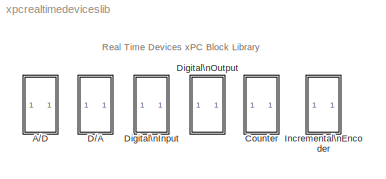
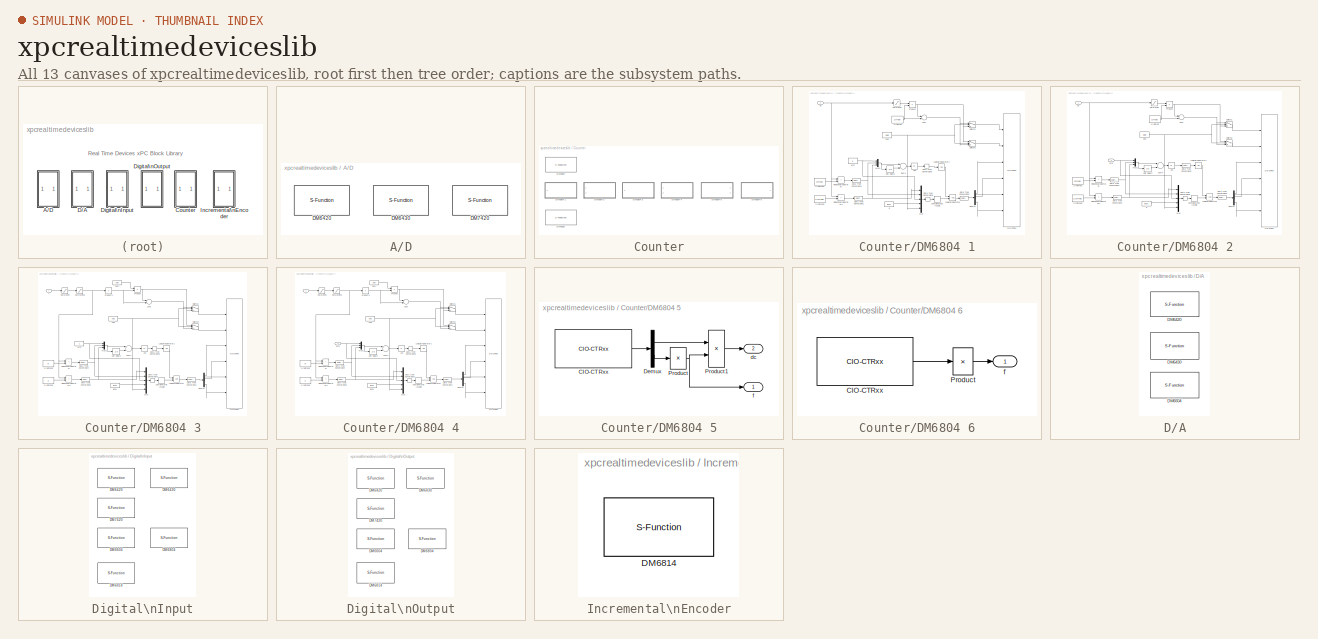
[diagram: thumbnail index - all 13 canvases of the model, root first then tree order]
MODEL xpcrealtimedeviceslib
KIND library
BLOCK [SubSystem] A//D
  EnableExecutionContextPropagation = on
  MinAlgLoopOccurrences = off
  Ports = []
  TreatAsAtomicUnit = off
BLOCK [S-Function] A//D/DM6420 
  FunctionName = adrtddm64x0
  InitFcn = madrtddm64x0(1);
  MaskCallbackString = |||||
  MaskDescription = DM6420\nReal Time Devices\nAnalog Input
  MaskDisplay = text(0.05,0.75,'DM6420','horizontalAlignment','left');text(0.05,0.50,'RTD','horizontalAlignment','left');text(0.05,0.25,'AnalogIn','horizontalAlignment','left');port_label('output',1,'1 (SE)');
  MaskEnableString = on,on,on,on,on,on
  MaskHelp = helpview(fullfile(docroot, 'mapfiles', 'xpc.map'), 'RealTimeDevices_DM6420_AD')
  MaskIconFrame = on
  MaskIconOpaque = on
  MaskIconRotate = none
  MaskIconUnits = normalized
  MaskInitialization = boardType=1;\nbaseAddr=hex2dec(baseAddr(3:end));\nchannel=0;coupling=0;range=1;gain=0;\n[channel,coupling,range,gain,maskdisplay,maskdescription]=madrtddm64x0(2, boardType, channelin, couplingin, rangein, gainin);\nset_param(gcb,'MaskDisplay',maskdisplay);\nset_param(gcb,'MaskDescription',maskdescription);\n\n
  MaskPromptString = Channel vector:|Input coupling vector:|Range vector:|Gain vector:|Sample time:|Base address (i.e. 0xd000):
  MaskSelfModifiable = on
  MaskStyleString = edit,edit,edit,edit,edit,edit
  MaskTabNameString = ,,,,,
  MaskToolTipString = on,on,on,on,on,on
  MaskTunableValueString = on,on,on,on,on,on
  MaskType = adrtddm6420
  MaskValueString = [1]|[1]|[-10]|[1]|0.001|0x300
  MaskVarAliasString = ,,,,,
  MaskVariables = channelin=@1;couplingin=@2;rangein=@3;gainin=@4;ts=@5;baseAddr=&6;
  MaskVisibilityString = on,on,on,on,on,on
  Parameters = channel, coupling, range, gain, ts, baseAddr, boardType
  Ports = [0, 1]
BLOCK [S-Function] A//D/DM6430 
  FunctionName = adrtddm64x0
  InitFcn = madrtddm64x0(1);
  MaskCallbackString = ||||
  MaskDescription = DM6430\nReal Time Devices\nAnalog Input
  MaskDisplay = text(0.05,0.75,'DM6430','horizontalAlignment','left');text(0.05,0.50,'RTD','horizontalAlignment','left');text(0.05,0.25,'AnalogIn','horizontalAlignment','left');port_label('output',1,'1 (SE)');
  MaskEnableString = on,on,on,on,on
  MaskHelp = helpview(fullfile(docroot, 'mapfiles', 'xpc.map'), 'RealTimeDevices_DM6430_AD')
  MaskIconFrame = on
  MaskIconOpaque = on
  MaskIconRotate = none
  MaskIconUnits = normalized
  MaskInitialization = rangein=-10;\nboardType=2;\nbaseAddr=hex2dec(baseAddr(3:end));\nchannel=0;coupling=0;range=1;gain=0;\n[channel,coupling,range,gain,maskdisplay,maskdescription]=madrtddm64x0(2, boardType, channelin, couplingin, rangein, gainin);\nset_param(gcb,'MaskDisplay',maskdisplay);\nset_param(gcb,'MaskDescription',maskdescription);\n\n
  MaskPromptString = Channel vector:|Input coupling vector:|Gain vector:|Sample time:|Base address (i.e. 0xd000):
  MaskSelfModifiable = on
  MaskStyleString = edit,edit,edit,edit,edit
  MaskTabNameString = ,,,,
  MaskToolTipString = on,on,on,on,on
  MaskTunableValueString = on,on,on,on,on
  MaskType = adrtddm6430
  MaskValueString = [1]|[1]|[1]|0.001|0x300
  MaskVarAliasString = ,,,,
  MaskVariables = channelin=@1;couplingin=@2;gainin=@3;ts=@4;baseAddr=&5;
  MaskVisibilityString = on,on,on,on,on
  Parameters = channel, coupling, range, gain, ts, baseAddr, boardType
  Ports = [0, 1]
BLOCK [S-Function] A//D/DM7420 
  FunctionName = adrtddm7420
  InitFcn = madrtddm7420(1);
  MaskCallbackString = |||||
  MaskDescription = DM7420\nReal Time Devices\nAnalog Input
  MaskDisplay = text(0.05,0.75,'DM7420','horizontalAlignment','left');text(0.05,0.50,'RTD','horizontalAlignment','left');text(0.05,0.25,'AnalogIn','horizontalAlignment','left');port_label('output',1,'1 (RSE)');
  MaskEnableString = on,on,on,on,on,on
  MaskHelp = helpview(fullfile(docroot, 'mapfiles', 'xpc.map'), 'RealTimeDevices_DM7420_AD')
  MaskIconFrame = on
  MaskIconOpaque = on
  MaskIconRotate = none
  MaskIconUnits = normalized
  MaskInitialization = pciDev=1;\nchannel=0;coupling=0;range=1;gain=0;\n[channel,coupling,range,gain,maskdisplay,maskdescription]=madrtddm7420(2, channelin, couplingin, rangein, gainin);\nset_param(gcb,'MaskDisplay',maskdisplay);\nset_param(gcb,'MaskDescription',maskdescription);\n\n
  MaskPromptString = Channel vector:|Input coupling vector:|Range vector:|Gain vector:|Sample time:|PCI slot (-1: autosearch):
  MaskSelfModifiable = on
  MaskStyleString = edit,edit,edit,edit,edit,edit
  MaskTabNameString = ,,,,,
  MaskToolTipString = on,on,on,on,on,on
  MaskTunableValueString = on,on,on,on,on,on
  MaskType = adrtddm7420
  MaskValueString = [1]|[1]|[-10]|[1]|0.001|-1
  MaskVarAliasString = ,,,,,
  MaskVariables = channelin=@1;couplingin=@2;rangein=@3;gainin=@4;ts=@5;pciSlot=@6;
  MaskVisibilityString = on,on,on,on,on,on
  Parameters = channel, coupling, range, gain, ts, pciSlot, pciDev
  Ports = [0, 1]
BLOCK [SubSystem] Counter
  EnableExecutionContextPropagation = on
  MinAlgLoopOccurrences = off
  Ports = []
  TreatAsAtomicUnit = off
BLOCK [S-Function] Counter/DM6804 
  FunctionName = ctramd9513isa
  MaskCallbackString = ||||||
  MaskDescription = DM6804\nReal Time Devices\nAMD9513 Counter
  MaskDisplay = disp('AMD9513\\nCounter')
  MaskEnableString = on,on,on,on,on,on,on
  MaskHelp = helpview(fullfile(docroot, 'mapfiles', 'xpc.map'), 'RealTimeDevices_DM6804_Counter')
  MaskIconFrame = on
  MaskIconOpaque = on
  MaskIconRotate = none
  MaskIconUnits = autoscale
  MaskInitialization = baseAddress=hex2dec(baseAddress(3:end));\n[io,mm, cms, initir, ir, termir]=mamd9513parse(mastermode, countermode, init, commands, term);
  MaskPromptString = Master mode structure:|Counter mode structure:|Initialization command structure:|Runtime command structure:|Termination command structure:|Sample time:|9513 chip base address (i.e. 0xd000):
  MaskSelfModifiable = on
  MaskStyleString = edit,edit,edit,edit,edit,edit,edit
  MaskTabNameString = ,,,,,,
  MaskToolTipString = on,on,on,on,on,on,on
  MaskTunableValueString = on,on,on,on,on,on,on
  MaskType = rtddm6804
  MaskValueString = []|[]|[]|[]|[]|0.001|'0x300'
  MaskVarAliasString = ,,,,,,
  MaskVariables = mastermode=@1;countermode=@2;init=@3;commands=@4;term=@5;ts=@6;baseAddress=@7;
  MaskVisibilityString = on,on,on,on,on,on,on
  Parameters = io, mm, cms, initir, ir, termir, ts, baseAddress
  Ports = []
BLOCK [SubSystem] Counter/DM6804 1
  EnableExecutionContextPropagation = on
  MaskCallbackString = ||||||
  MaskDescription = DM6804\nReal Time Devices\nPWM
  MaskDisplay = text(0.95,0.75,'DM6804','horizontalAlignment','right');text(0.95,0.50,'RTD','horizontalAlignment','right');text(0.95,0.25,'PWM','horizontalAlignment','right');port_label('input',1,[num2str(counterin),' (dc)'] );
  MaskEnableString = on,on,on,on,on,on,on
  MaskHelp = helpview(fullfile(docroot, 'mapfiles', 'xpc.map'), 'RealTimeDevices_DM6804-1_Counter')
  MaskIconFrame = on
  MaskIconOpaque = on
  MaskIconRotate = none
  MaskIconUnits = normalized
  MaskInitialization = init_arm=0;\ninitduty=0.5;\ncounter=counterin;\nbaseAddress=['0x',dec2hex(hex2dec(baseAddress(3:end))+4)];\n[MasterMode, CounterMode, Init, Runtime, Term] =pwmarm_amd9513(counter, freq_base, freq, initduty, level, init_arm);\nlevel=level-1;\nseq=seq-1;
  MaskPromptString = Counter:|Frequency base:|Relative output frequency:|Level sequence of square wave:|Level when disarmed:|Sample time:|Base address (i.e. 0xd000):
  MaskSelfModifiable = on
  MaskStyleString = popup(1|2|3|4|5),popup(F1=5MHz|F2=500KHz|F3=50kHz|F4=5kHz|F5=500Hz),edit,popup(High - Low|Low- High),popup(Low|High),edit,edit
  MaskTabNameString = ,,,,,,
  MaskToolTipString = on,on,on,on,on,on,on
  MaskTunableValueString = on,on,on,on,on,on,on
  MaskType = PWM
  MaskValueString = 1|F1=5MHz|0.001|High - Low|High|0.001|0x300
  MaskVarAliasString = ,,,,,,
  MaskVariables = counterin=@1;freq_base=@2;freq=@3;seq=@4;level=@5;Ts=@6;baseAddress=&7;
  MaskVisibilityString = on,on,on,on,on,on,on
  MinAlgLoopOccurrences = off
  Ports = [1]
  TreatAsAtomicUnit = off
BLOCK [Constant] Counter/DM6804 1/1//relFreq
  Value = 1/freq
BLOCK [Constant] Counter/DM6804 1/1//relFreq1
  Value = 2*freq
BLOCK [Constant] Counter/DM6804 1/1//relFreq2
  Value = 1-2*freq
BLOCK [Abs] Counter/DM6804 1/Abs
BLOCK [Reference] Counter/DM6804 1/CIO-CTRxx   REF=xpcmeasurementcomputinglib/Counter/CIO-CTRxx 
  Ports = [6]
  SourceBlock = xpcmeasurementcomputinglib/Counter/CIO-CTRxx
  SourceType = cioctrxx
  baseAddress = baseAddress
  commands = Runtime
  countermode = CounterMode
  init = Init
  mastermode = MasterMode
  term = Term
  ts = Ts
BLOCK [CombinatorialLogic] Counter/DM6804 1/Combinatorial \nLogic
  TruthTable = [0,0,1,0;0,0,1,0;0,0,0,1;0,0,0,1;0,1,0,0;1,0,0,0;0,1,0,0;1,0,0,0;0,0,1,0;0,0,1,0;0,0,0,1;0,0,0,1;0,0,1,0;0,0,1,0;0,0,1,0;0,0,1,0;0,0,1,0;0,0,1,0;0,0,0,1;0,0,0,1;0,0,0,1;0,0,0,1;0,0,0,1;0,0,0,1;0,0,0,0;0,0,0,0;0,0,0,0;0,0,0,0;0,0,0,0;0,0,0,0;0,0,0,0;0,0,0,0]  <repeated x4 — deduplicated; at blocks: Combinatorial \nLogic>
BLOCK [DataTypeConversion] Counter/DM6804 1/Data Type Conversion1
  OutDataTypeMode = double
BLOCK [DataTypeConversion] Counter/DM6804 1/Data Type Conversion2
BLOCK [DataTypeConversion] Counter/DM6804 1/Data Type Conversion3
BLOCK [DataTypeConversion] Counter/DM6804 1/Data Type Conversion4
  OutDataTypeMode = double
BLOCK [DataTypeConversion] Counter/DM6804 1/Data Type Conversion5
BLOCK [Demux] Counter/DM6804 1/Demux
  Ports = [1, 4]
BLOCK [Logic] Counter/DM6804 1/Logical\nOperator
  Ports = [2, 1]
BLOCK [Logic] Counter/DM6804 1/Logical\nOperator1
  Inputs = 1
  Operator = OR
  Ports = [1, 1]
BLOCK [Mux] Counter/DM6804 1/Mux
  DisplayOption = bar
  Inputs = 5
  Ports = [5, 1]
BLOCK [Mux] Counter/DM6804 1/Mux1
  DisplayOption = bar
  Inputs = 3
  Ports = [3, 1]
BLOCK [Product] Counter/DM6804 1/Product
  Ports = [2, 1]
  RndMeth = Floor
BLOCK [RelationalOperator] Counter/DM6804 1/Relational\nOperator
  Operator = <
BLOCK [RelationalOperator] Counter/DM6804 1/Relational\nOperator1
  Operator = >
BLOCK [Saturate] Counter/DM6804 1/Saturation
  LowerLimit = 2*freq
  UpperLimit = 1-2*freq
  ZeroCross = off
BLOCK [Sum] Counter/DM6804 1/Sum
  Inputs = -+
  Ports = [2, 1]
BLOCK [Sum] Counter/DM6804 1/Sum4
  Inputs = +-
  Ports = [2, 1]
BLOCK [Switch] Counter/DM6804 1/Switch1
  SaturateOnIntegerOverflow = off
  Threshold = 0.5
BLOCK [Switch] Counter/DM6804 1/Switch2
  SaturateOnIntegerOverflow = off
  Threshold = 0.5
BLOCK [UnitDelay] Counter/DM6804 1/Unit Delay2
  SampleTime = Ts
  X0 = 2
BLOCK [Constant] Counter/DM6804 1/arm
BLOCK [Inport] Counter/DM6804 1/dc
  IconDisplay = Port number
  LatchInput = off
BLOCK [Constant] Counter/DM6804 1/g
  Value = level
BLOCK [Constant] Counter/DM6804 1/seq
  Value = seq
BLOCK [SubSystem] Counter/DM6804 2
  EnableExecutionContextPropagation = on
  MaskCallbackString = ||||||
  MaskDescription = DM6804\nReal Time Devices\nPWM & ARM
  MaskDisplay = text(0.95,0.75,'DM6804','horizontalAlignment','right');text(0.95,0.50,'RTD','horizontalAlignment','right');text(0.95,0.25,'PWM & ARM','horizontalAlignment','right');port_label('input',1,[num2str(counterin),' (dc)'] );port_label('input',2,[num2str(counterin),' (arm)'] );
  MaskEnableString = on,on,on,on,on,on,on
  MaskHelp = helpview(fullfile(docroot, 'mapfiles', 'xpc.map'), 'RealTimeDevices_DM6804-2_Counter')
  MaskIconFrame = on
  MaskIconOpaque = on
  MaskIconRotate = none
  MaskIconUnits = normalized
  MaskInitialization = init_arm=0;\ninitduty=0.5;\ncounter=counterin;\nbaseAddress=['0x',dec2hex(hex2dec(baseAddress(3:end))+4)];\n[MasterMode, CounterMode, Init, Runtime, Term] =pwmarm_amd9513(counter, freq_base, freq, initduty, level, init_arm);\nlevel=level-1;\nseq=seq-1;
  MaskPromptString = Counter:|Frequency base:|Relative output frequency:|Level sequence of square wave:|Level when disarmed:|Sample time:|Base address (i.e. 0xd000):
  MaskSelfModifiable = on
  MaskStyleString = popup(1|2|3|4|5),popup(F1=5MHz|F2=500KHz|F3=50kHz|F4=5kHz|F5=500Hz),edit,popup(High - Low|Low- High),popup(Low|High),edit,edit
  MaskTabNameString = ,,,,,,
  MaskToolTipString = on,on,on,on,on,on,on
  MaskTunableValueString = on,on,on,on,on,on,on
  MaskType = PWM
  MaskValueString = 1|F1=5MHz|0.001|High - Low|High|0.001|0x300
  MaskVarAliasString = ,,,,,,
  MaskVariables = counterin=@1;freq_base=@2;freq=@3;seq=@4;level=@5;Ts=@6;baseAddress=&7;
  MaskVisibilityString = on,on,on,on,on,on,on
  MinAlgLoopOccurrences = off
  Ports = [2]
  TreatAsAtomicUnit = off
BLOCK [Constant] Counter/DM6804 2/1//relFreq
  Value = 1/freq
BLOCK [Constant] Counter/DM6804 2/1//relFreq1
  Value = 2*freq
BLOCK [Constant] Counter/DM6804 2/1//relFreq2
  Value = 1-2*freq
BLOCK [Abs] Counter/DM6804 2/Abs
BLOCK [Reference] Counter/DM6804 2/CIO-CTRxx   REF=xpcmeasurementcomputinglib/Counter/CIO-CTRxx 
  Ports = [6]
  SourceBlock = xpcmeasurementcomputinglib/Counter/CIO-CTRxx
  SourceType = cioctrxx
  baseAddress = baseAddress
  commands = Runtime
  countermode = CounterMode
  init = Init
  mastermode = MasterMode
  term = Term
  ts = Ts
BLOCK [CombinatorialLogic] Counter/DM6804 2/Combinatorial \nLogic
BLOCK [DataTypeConversion] Counter/DM6804 2/Data Type Conversion1
  OutDataTypeMode = double
BLOCK [DataTypeConversion] Counter/DM6804 2/Data Type Conversion2
BLOCK [DataTypeConversion] Counter/DM6804 2/Data Type Conversion3
BLOCK [DataTypeConversion] Counter/DM6804 2/Data Type Conversion4
  OutDataTypeMode = double
BLOCK [DataTypeConversion] Counter/DM6804 2/Data Type Conversion5
BLOCK [Demux] Counter/DM6804 2/Demux
  Ports = [1, 4]
BLOCK [Logic] Counter/DM6804 2/Logical\nOperator
  Ports = [2, 1]
BLOCK [Logic] Counter/DM6804 2/Logical\nOperator1
  Inputs = 1
  Operator = OR
  Ports = [1, 1]
BLOCK [Mux] Counter/DM6804 2/Mux
  DisplayOption = bar
  Inputs = 5
  Ports = [5, 1]
BLOCK [Mux] Counter/DM6804 2/Mux1
  DisplayOption = bar
  Inputs = 3
  Ports = [3, 1]
BLOCK [Product] Counter/DM6804 2/Product
  Ports = [2, 1]
  RndMeth = Floor
BLOCK [RelationalOperator] Counter/DM6804 2/Relational\nOperator
  Operator = <
BLOCK [RelationalOperator] Counter/DM6804 2/Relational\nOperator1
  Operator = >
BLOCK [Saturate] Counter/DM6804 2/Saturation
  LowerLimit = 2*freq
  UpperLimit = 1-2*freq
  ZeroCross = off
BLOCK [Sum] Counter/DM6804 2/Sum
  Inputs = -+
  Ports = [2, 1]
BLOCK [Sum] Counter/DM6804 2/Sum4
  Inputs = +-
  Ports = [2, 1]
BLOCK [Switch] Counter/DM6804 2/Switch1
  SaturateOnIntegerOverflow = off
  Threshold = 0.5
BLOCK [Switch] Counter/DM6804 2/Switch2
  SaturateOnIntegerOverflow = off
  Threshold = 0.5
BLOCK [UnitDelay] Counter/DM6804 2/Unit Delay2
  SampleTime = Ts
  X0 = 2
BLOCK [Inport] Counter/DM6804 2/arm
  IconDisplay = Port number
  LatchInput = off
  Port = 2
BLOCK [Inport] Counter/DM6804 2/dc
  IconDisplay = Port number
  LatchInput = off
BLOCK [Constant] Counter/DM6804 2/g
  Value = level
BLOCK [Constant] Counter/DM6804 2/seq
  Value = seq
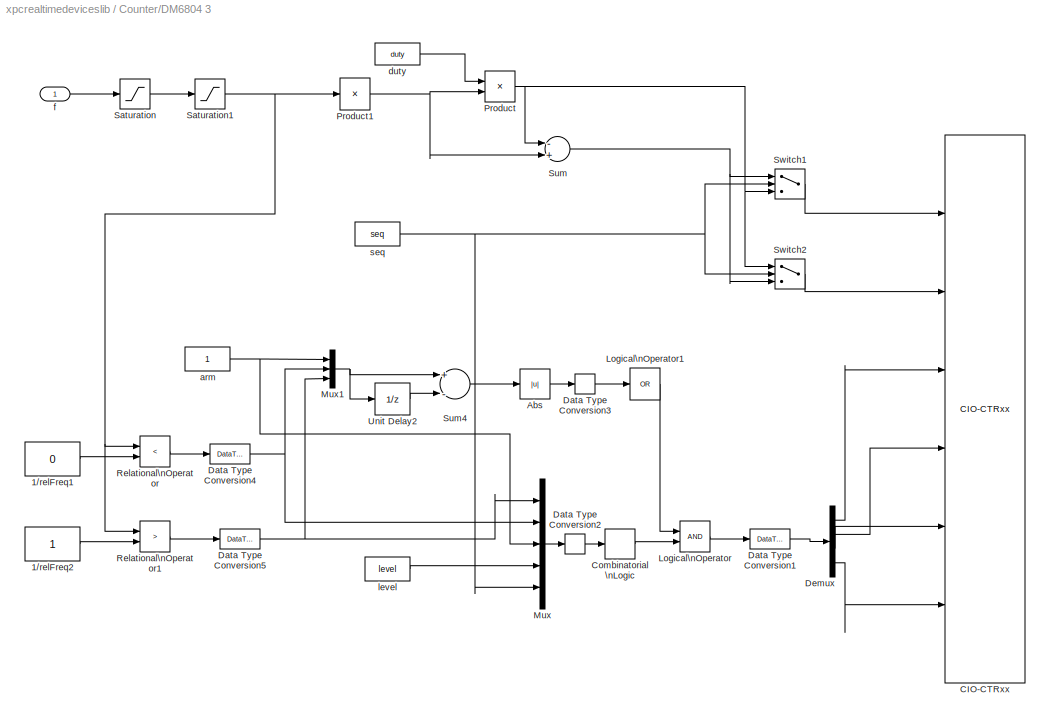
BLOCK [SubSystem] Counter/DM6804 3
  EnableExecutionContextPropagation = on
  MaskCallbackString = ||||||
  MaskDescription = DM6804\nReal Time Devices\nFM
  MaskDisplay = text(0.95,0.75,'DM6804','horizontalAlignment','right');text(0.95,0.50,'RTD','horizontalAlignment','right');text(0.95,0.25,'FM','horizontalAlignment','right');port_label('input',1,[num2str(counterin),' (f)'] );
  MaskEnableString = on,on,on,on,on,on,on
  MaskHelp = helpview(fullfile(docroot, 'mapfiles', 'xpc.map'), 'RealTimeDevices_DM6804-3_Counter')
  MaskIconFrame = on
  MaskIconOpaque = on
  MaskIconRotate = none
  MaskIconUnits = normalized
  MaskInitialization = init_arm=0;\ninitfreq=0.005;\ncounter=counterin;\nbaseAddress=['0x',dec2hex(hex2dec(baseAddress(3:end))+4)];\n[MasterMode, CounterMode, Init, Runtime, Term] =fmarm_amd9513(counter, freq_base, duty, initfreq, level, init_arm);\nlevel=level-1;\nseq=seq-1;
  MaskPromptString = Counter:|Frequency base:|Output duty cycle:|Level sequence of square wave:|Level when disarmed:|Sample time:|Base address (i.e. 0xd000):
  MaskSelfModifiable = on
  MaskStyleString = popup(1|2|3|4|5),popup(F1=5MHz|F2=500KHz|F3=50kHz|F4=5kHz|F5=500Hz),edit,popup(High - Low|Low- High),popup(Low|High),edit,edit
  MaskTabNameString = ,,,,,,
  MaskToolTipString = on,on,on,on,on,on,on
  MaskTunableValueString = on,on,on,on,on,on,on
  MaskType = PWM
  MaskValueString = 1|F1=5MHz|0.001|High - Low|High|0.001|0x300
  MaskVarAliasString = ,,,,,,
  MaskVariables = counterin=@1;freq_base=@2;duty=@3;seq=@4;level=@5;Ts=@6;baseAddress=&7;
  MaskVisibilityString = on,on,on,on,on,on,on
  MinAlgLoopOccurrences = off
  Ports = [1]
  TreatAsAtomicUnit = off
BLOCK [Constant] Counter/DM6804 3/1//relFreq1
  Value = 0
BLOCK [Constant] Counter/DM6804 3/1//relFreq2
BLOCK [Abs] Counter/DM6804 3/Abs
BLOCK [Reference] Counter/DM6804 3/CIO-CTRxx   REF=xpcmeasurementcomputinglib/Counter/CIO-CTRxx 
  Ports = [6]
  SourceBlock = xpcmeasurementcomputinglib/Counter/CIO-CTRxx
  SourceType = cioctrxx
  baseAddress = baseAddress
  commands = Runtime
  countermode = CounterMode
  init = Init
  mastermode = MasterMode
  term = Term
  ts = Ts
BLOCK [CombinatorialLogic] Counter/DM6804 3/Combinatorial \nLogic
BLOCK [DataTypeConversion] Counter/DM6804 3/Data Type Conversion1
BLOCK [DataTypeConversion] Counter/DM6804 3/Data Type Conversion2
BLOCK [DataTypeConversion] Counter/DM6804 3/Data Type Conversion3
BLOCK [DataTypeConversion] Counter/DM6804 3/Data Type Conversion4
  OutDataTypeMode = double
BLOCK [DataTypeConversion] Counter/DM6804 3/Data Type Conversion5
  OutDataTypeMode = double
BLOCK [Demux] Counter/DM6804 3/Demux
  Ports = [1, 4]
BLOCK [Logic] Counter/DM6804 3/Logical\nOperator
  Ports = [2, 1]
BLOCK [Logic] Counter/DM6804 3/Logical\nOperator1
  Inputs = 1
  Operator = OR
  Ports = [1, 1]
BLOCK [Mux] Counter/DM6804 3/Mux
  DisplayOption = bar
  Inputs = 5
  Ports = [5, 1]
BLOCK [Mux] Counter/DM6804 3/Mux1
  DisplayOption = bar
  Inputs = 3
  Ports = [3, 1]
BLOCK [Product] Counter/DM6804 3/Product
  Ports = [2, 1]
  RndMeth = Floor
BLOCK [Product] Counter/DM6804 3/Product1
  Inputs = /
  Ports = [1, 1]
  RndMeth = Floor
BLOCK [RelationalOperator] Counter/DM6804 3/Relational\nOperator
  Operator = <
BLOCK [RelationalOperator] Counter/DM6804 3/Relational\nOperator1
  Operator = >
BLOCK [Saturate] Counter/DM6804 3/Saturation
  LowerLimit = duty/(2^16-1)
  UpperLimit = duty/2
  ZeroCross = off
BLOCK [Saturate] Counter/DM6804 3/Saturation1
  LowerLimit = (1-duty)/(2^16-1)
  UpperLimit = (1-duty)/2
  ZeroCross = off
BLOCK [Sum] Counter/DM6804 3/Sum
  Inputs = -+
  Ports = [2, 1]
BLOCK [Sum] Counter/DM6804 3/Sum4
  Inputs = +-
  Ports = [2, 1]
BLOCK [Switch] Counter/DM6804 3/Switch1
  SaturateOnIntegerOverflow = off
  Threshold = 0.5
BLOCK [Switch] Counter/DM6804 3/Switch2
  SaturateOnIntegerOverflow = off
  Threshold = 0.5
BLOCK [UnitDelay] Counter/DM6804 3/Unit Delay2
  SampleTime = Ts
  X0 = 2
BLOCK [Constant] Counter/DM6804 3/arm
BLOCK [Constant] Counter/DM6804 3/duty
  Value = duty
BLOCK [Inport] Counter/DM6804 3/f
  IconDisplay = Port number
  LatchInput = off
BLOCK [Constant] Counter/DM6804 3/level
  Value = level
BLOCK [Constant] Counter/DM6804 3/seq
  Value = seq
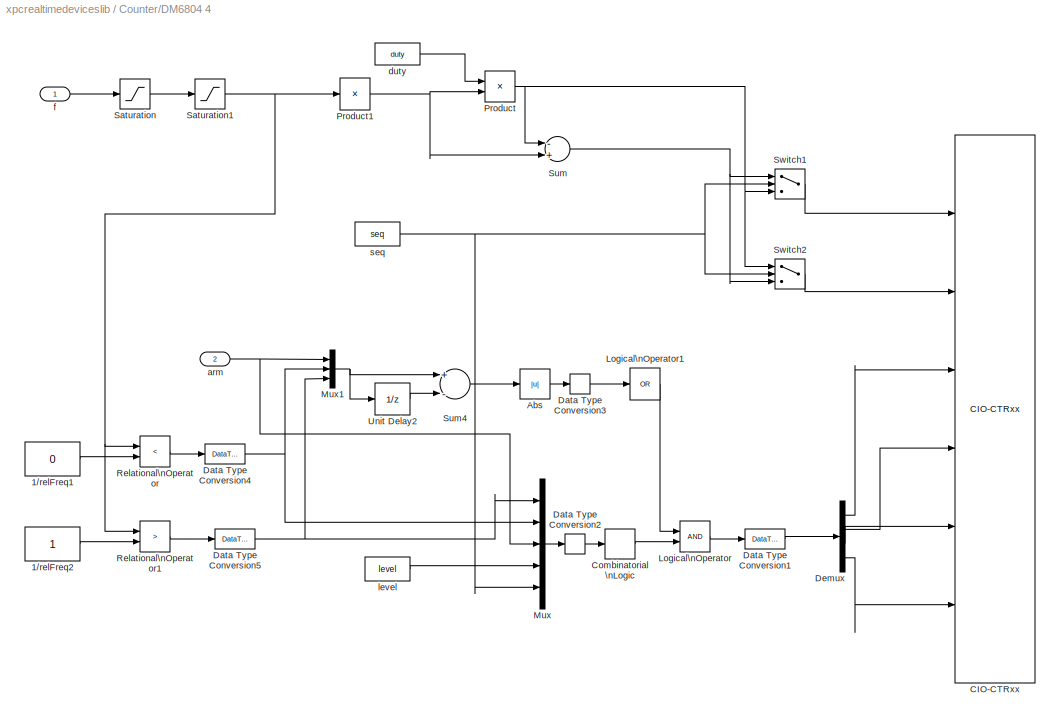
BLOCK [SubSystem] Counter/DM6804 4
  EnableExecutionContextPropagation = on
  MaskCallbackString = ||||||
  MaskDescription = DM6804\nReal Time Devices\nFM & ARM
  MaskDisplay = text(0.95,0.75,'DM6804','horizontalAlignment','right');text(0.95,0.50,'RTD','horizontalAlignment','right');text(0.95,0.25,'FM & ARM','horizontalAlignment','right');port_label('input',1,[num2str(counterin),' (f)'] );port_label('input',2,[num2str(counterin),' (arm)'] );
  MaskEnableString = on,on,on,on,on,on,on
  MaskHelp = helpview(fullfile(docroot, 'mapfiles', 'xpc.map'), 'RealTimeDevices_DM6804-4_Counter')
  MaskIconFrame = on
  MaskIconOpaque = on
  MaskIconRotate = none
  MaskIconUnits = normalized
  MaskInitialization = init_arm=0;\ninitfreq=0.005;\ncounter=counterin;\nbaseAddress=['0x',dec2hex(hex2dec(baseAddress(3:end))+4)];\n[MasterMode, CounterMode, Init, Runtime, Term] =fmarm_amd9513(counter, freq_base, duty, initfreq, level, init_arm);\nlevel=level-1;\nseq=seq-1;
  MaskPromptString = Counter:|Frequency base:|Output duty cycle:|Level sequence of square wave:|Level when disarmed:|Sample time:|Base address (i.e. 0xd000):
  MaskSelfModifiable = on
  MaskStyleString = popup(1|2|3|4|5),popup(F1=5MHz|F2=500KHz|F3=50kHz|F4=5kHz|F5=500Hz),edit,popup(High - Low|Low- High),popup(Low|High),edit,edit
  MaskTabNameString = ,,,,,,
  MaskToolTipString = on,on,on,on,on,on,on
  MaskTunableValueString = on,on,on,on,on,on,on
  MaskType = FM
  MaskValueString = 1|F1=5MHz|0.001|High - Low|High|0.001|0x300
  MaskVarAliasString = ,,,,,,
  MaskVariables = counterin=@1;freq_base=@2;duty=@3;seq=@4;level=@5;Ts=@6;baseAddress=&7;
  MaskVisibilityString = on,on,on,on,on,on,on
  MinAlgLoopOccurrences = off
  Ports = [2]
  TreatAsAtomicUnit = off
BLOCK [Constant] Counter/DM6804 4/1//relFreq1
  Value = 0
BLOCK [Constant] Counter/DM6804 4/1//relFreq2
BLOCK [Abs] Counter/DM6804 4/Abs
BLOCK [Reference] Counter/DM6804 4/CIO-CTRxx   REF=xpcmeasurementcomputinglib/Counter/CIO-CTRxx 
  Ports = [6]
  SourceBlock = xpcmeasurementcomputinglib/Counter/CIO-CTRxx
  SourceType = cioctrxx
  baseAddress = baseAddress
  commands = Runtime
  countermode = CounterMode
  init = Init
  mastermode = MasterMode
  term = Term
  ts = Ts
BLOCK [CombinatorialLogic] Counter/DM6804 4/Combinatorial \nLogic
BLOCK [DataTypeConversion] Counter/DM6804 4/Data Type Conversion1
BLOCK [DataTypeConversion] Counter/DM6804 4/Data Type Conversion2
BLOCK [DataTypeConversion] Counter/DM6804 4/Data Type Conversion3
BLOCK [DataTypeConversion] Counter/DM6804 4/Data Type Conversion4
  OutDataTypeMode = double
BLOCK [DataTypeConversion] Counter/DM6804 4/Data Type Conversion5
  OutDataTypeMode = double
BLOCK [Demux] Counter/DM6804 4/Demux
  Ports = [1, 4]
BLOCK [Logic] Counter/DM6804 4/Logical\nOperator
  Ports = [2, 1]
BLOCK [Logic] Counter/DM6804 4/Logical\nOperator1
  Inputs = 1
  Operator = OR
  Ports = [1, 1]
BLOCK [Mux] Counter/DM6804 4/Mux
  DisplayOption = bar
  Inputs = 5
  Ports = [5, 1]
BLOCK [Mux] Counter/DM6804 4/Mux1
  DisplayOption = bar
  Inputs = 3
  Ports = [3, 1]
BLOCK [Product] Counter/DM6804 4/Product
  Ports = [2, 1]
  RndMeth = Floor
BLOCK [Product] Counter/DM6804 4/Product1
  Inputs = /
  Ports = [1, 1]
  RndMeth = Floor
BLOCK [RelationalOperator] Counter/DM6804 4/Relational\nOperator
  Operator = <
BLOCK [RelationalOperator] Counter/DM6804 4/Relational\nOperator1
  Operator = >
BLOCK [Saturate] Counter/DM6804 4/Saturation
  LowerLimit = duty/(2^16-1)
  UpperLimit = duty/2
  ZeroCross = off
BLOCK [Saturate] Counter/DM6804 4/Saturation1
  LowerLimit = (1-duty)/(2^16-1)
  UpperLimit = (1-duty)/2
  ZeroCross = off
BLOCK [Sum] Counter/DM6804 4/Sum
  Inputs = -+
  Ports = [2, 1]
BLOCK [Sum] Counter/DM6804 4/Sum4
  Inputs = +-
  Ports = [2, 1]
BLOCK [Switch] Counter/DM6804 4/Switch1
  SaturateOnIntegerOverflow = off
  Threshold = 0.5
BLOCK [Switch] Counter/DM6804 4/Switch2
  SaturateOnIntegerOverflow = off
  Threshold = 0.5
BLOCK [UnitDelay] Counter/DM6804 4/Unit Delay2
  SampleTime = Ts
  X0 = 2
BLOCK [Inport] Counter/DM6804 4/arm
  IconDisplay = Port number
  LatchInput = off
  Port = 2
BLOCK [Constant] Counter/DM6804 4/duty
  Value = duty
BLOCK [Inport] Counter/DM6804 4/f
  IconDisplay = Port number
  LatchInput = off
BLOCK [Constant] Counter/DM6804 4/level
  Value = level
BLOCK [Constant] Counter/DM6804 4/seq
  Value = seq
BLOCK [SubSystem] Counter/DM6804 5
  EnableExecutionContextPropagation = on
  MaskCallbackString = |||
  MaskDescription = DM6804\nReal Time Devices\nPWM capture
  MaskDisplay = text(0.05,0.75,'DM6804','horizontalAlignment','left');text(0.05,0.50,'RTD','horizontalAlignment','left');text(0.05,0.25,'PWM capture','horizontalAlignment','left');port_label('output',1,[num2str(counterin),' (f)'] );port_label('output',2,[num2str(counterin+1),' (dc)'] );
  MaskEnableString = on,on,on,on
  MaskHelp = helpview(fullfile(docroot, 'mapfiles', 'xpc.map'), 'RealTimeDevices_DM6804-5_Counter')
  MaskIconFrame = on
  MaskIconOpaque = on
  MaskIconRotate = none
  MaskIconUnits = normalized
  MaskInitialization = counter=counterin;\nbaseAddress=['0x',dec2hex(hex2dec(baseAddress(3:end))+4)];\n[MasterMode, CounterMode, Init, Runtime, Term] =pwmcap_amd9513(counter, freq_base);\n
  MaskPromptString = Counter:|Frequency base:|Sample time:|Base address (i.e. 0xd000):
  MaskSelfModifiable = on
  MaskStyleString = popup(1&2|2&3|3&4|4&5),popup(F1=5MHz|F2=500KHz|F3=50kHz|F4=5kHz|F5=500Hz),edit,edit
  MaskTabNameString = ,,,
  MaskToolTipString = on,on,on,on
  MaskTunableValueString = on,on,on,on
  MaskType = PWMcap
  MaskValueString = 1&2|F1=5MHz|0.001|0x300
  MaskVarAliasString = ,,,
  MaskVariables = counterin=@1;freq_base=@2;Ts=@3;baseAddress=&4;
  MaskVisibilityString = on,on,on,on
  MinAlgLoopOccurrences = off
  Ports = [0, 2]
  TreatAsAtomicUnit = off
BLOCK [Reference] Counter/DM6804 5/CIO-CTRxx   REF=xpcmeasurementcomputinglib/Counter/CIO-CTRxx 
  Ports = [0, 1]
  SourceBlock = xpcmeasurementcomputinglib/Counter/CIO-CTRxx
  SourceType = cioctrxx
  baseAddress = baseAddress
  commands = Runtime
  countermode = CounterMode
  init = Init
  mastermode = MasterMode
  term = Term
  ts = Ts
BLOCK [Demux] Counter/DM6804 5/Demux
  Outputs = 2
  Ports = [1, 2]
BLOCK [Product] Counter/DM6804 5/Product
  Inputs = /
  Ports = [1, 1]
  RndMeth = Floor
BLOCK [Product] Counter/DM6804 5/Product1
  Inputs = **
  Ports = [2, 1]
  RndMeth = Floor
BLOCK [Outport] Counter/DM6804 5/dc
  BusOutputAsStruct = off
  IconDisplay = Port number
  Port = 2
BLOCK [Outport] Counter/DM6804 5/f
  BusOutputAsStruct = off
  IconDisplay = Port number
BLOCK [SubSystem] Counter/DM6804 6
  EnableExecutionContextPropagation = on
  MaskCallbackString = |||
  MaskDescription = DM6804\nReal Time Devices\nFrquency capture
  MaskDisplay = text(0.05,0.75,'DM6804','horizontalAlignment','left');text(0.05,0.50,'RTD','horizontalAlignment','left');text(0.05,0.25,'Freq. capture','horizontalAlignment','left');port_label('output',1,[num2str(counterin),' (f)'] );
  MaskEnableString = on,on,on,on
  MaskHelp = helpview(fullfile(docroot, 'mapfiles', 'xpc.map'), 'RealTimeDevices_DM6804-6_Counter')
  MaskIconFrame = on
  MaskIconOpaque = on
  MaskIconRotate = none
  MaskIconUnits = normalized
  MaskInitialization = counter=counterin;\nbaseAddress=['0x',dec2hex(hex2dec(baseAddress(3:end))+4)];\n[MasterMode, CounterMode, Init, Runtime, Term] =freqcap_amd9513(counter, freq_base);\n
  MaskPromptString = Counter:|Frequency base:|Sample time:|Base address (i.e. 0xd000):
  MaskSelfModifiable = on
  MaskStyleString = popup(1|2|3|4|5),popup(F1=5MHz|F2=500KHz|F3=50kHz|F4=5kHz|F5=500Hz),edit,edit
  MaskTabNameString = ,,,
  MaskToolTipString = on,on,on,on
  MaskTunableValueString = on,on,on,on
  MaskType = FREQcap
  MaskValueString = 1|F1=5MHz|0.001|0x300
  MaskVarAliasString = ,,,
  MaskVariables = counterin=@1;freq_base=@2;Ts=@3;baseAddress=&4;
  MaskVisibilityString = on,on,on,on
  MinAlgLoopOccurrences = off
  Ports = [0, 1]
  TreatAsAtomicUnit = off
BLOCK [Reference] Counter/DM6804 6/CIO-CTRxx   REF=xpcmeasurementcomputinglib/Counter/CIO-CTRxx 
  Ports = [0, 1]
  SourceBlock = xpcmeasurementcomputinglib/Counter/CIO-CTRxx
  SourceType = cioctrxx
  baseAddress = baseAddress
  commands = Runtime
  countermode = CounterMode
  init = Init
  mastermode = MasterMode
  term = Term
  ts = Ts
BLOCK [Product] Counter/DM6804 6/Product
  Inputs = /
  Ports = [1, 1]
  RndMeth = Floor
BLOCK [Outport] Counter/DM6804 6/f
  BusOutputAsStruct = off
  IconDisplay = Port number
BLOCK [S-Function] Counter/DM6816 
  FunctionName = pwmrtddm6816
  InitFcn = mpwmrtddm6816(1);
  MaskCallbackString = ||||||
  MaskDescription = DM6816\nRTD\nPWM
  MaskDisplay = disp('DM6816\\nRTD\\nPWM'); port_label('input', 1, '1');
  MaskEnableString = on,on,on,on,on,on,on
  MaskHelp = helpview(fullfile(docroot, 'mapfiles', 'xpc.map'), 'RTD_DM6816_PWM')
  MaskIconFrame = on
  MaskIconOpaque = on
  MaskIconRotate = none
  MaskIconUnits = autoscale
  MaskInitialization = phase = 2;\n[maskDisplay, maskDescription, baseDec] = mpwmrtddm6816( phase, channel, divisor, base );\nset_param(gcb, 'MaskDescription', maskDescription);\nset_param(gcb, 'MaskDisplay', maskDisplay);\n\n\n
  MaskPromptString = Channel vector:|Clock source for channels 1, 2, 3|Clock source for channels 4, 5, 6|Clock source for channels 7, 8, 9|Frequency divisors for timers 0, 1, 2:|Sample time:|Base address (e.g. 0xd000):
  MaskSelfModifiable = on
  MaskStyleString = edit,popup(8 MHz clock|Timer 1 output),popup(8 MHz clock|Timer 1 output),popup(8 MHz clock|Timer 1 output),edit,edit,edit
  MaskTabNameString = ,,,,,,
  MaskToolTipString = on,on,on,on,on,on,on
  MaskTunableValueString = on,on,on,on,on,on,on
  MaskType = pwmrtddm6816
  MaskValueString = [1]|Timer 1 output|Timer 1 output|Timer 1 output|[2, 2, 2]|0.001|0x300
  MaskVarAliasString = ,,,,,,
  MaskVariables = channel=@1;clock0=@2;clock1=@3;clock2=@4;divisor=@5;sampleTime=@6;base=&7;
  MaskVisibilityString = on,on,on,on,on,on,on
  Parameters = channel, [clock0, clock1, clock2], divisor, sampleTime, baseDec
  Ports = [1]
BLOCK [SubSystem] D//A
  EnableExecutionContextPropagation = on
  MinAlgLoopOccurrences = off
  Ports = []
  TreatAsAtomicUnit = off
BLOCK [S-Function] D//A/DM6420 
  FunctionName = dartddm64x0
  InitFcn = mdartddm64x0(1);
  MaskCallbackString = |||
  MaskDescription = DM6420\nReal Time Devices\nAnalog Output
  MaskDisplay = text(0.95,0.75,'DM6420','horizontalAlignment','right');text(0.95,0.50,'RTD','horizontalAlignment','right');text(0.95,0.25,'AnalogOut','horizontalAlignment','right');port_label('input',1,'1 (SE)');
  MaskEnableString = on,on,on,on
  MaskHelp = helpview(fullfile(docroot, 'mapfiles', 'xpc.map'), 'RealTimeDevices_DM6420_DA')
  MaskIconFrame = on
  MaskIconOpaque = on
  MaskIconRotate = none
  MaskIconUnits = normalized
  MaskInitialization = baseaddress=hex2dec(baseaddress(3:end));\nboardType=1;\n[maskdisplay, maskdescription]= mdartddm64x0(2, boardType, channel, range);\nset_param(gcb,'MaskDisplay',maskdisplay);\nset_param(gcb,'MaskDescription',maskdescription);\n
  MaskPromptString = Channel vector:|Range vector:|Sample time:|Base address (i.e. 0xd000):
  MaskSelfModifiable = on
  MaskStyleString = edit,edit,edit,edit
  MaskTabNameString = ,,,
  MaskToolTipString = on,on,on,on
  MaskTunableValueString = on,on,on,on
  MaskType = dartddm6420
  MaskValueString = [1]|[-5]|0.001|0x300
  MaskVarAliasString = ,,,
  MaskVariables = channel=@1;range=@2;sampletime=@3;baseaddress=&4;
  MaskVisibilityString = on,on,on,on
  Parameters = channel, range, sampletime, baseaddress, boardType
  Ports = [1]
BLOCK [S-Function] D//A/DM6430 
  FunctionName = dartddm6430
  InitFcn = mdartddm6430(1);
  MaskCallbackString = ||||
  MaskDescription = DM6430\nRTD\nAnalog Output
  MaskDisplay = disp('DM6430\\nRTD\\nAnalog Output'); port_label('input', 1, '1');
  MaskEnableString = on,on,on,on,on
  MaskHelp = helpview(fullfile(docroot, 'mapfiles', 'xpc.map'), 'RTD_DM6430_DA')
  MaskIconFrame = on
  MaskIconOpaque = on
  MaskIconRotate = none
  MaskIconUnits = autoscale
  MaskInitialization = phase = 2;\n[maskDisplay, maskDescription, reset, initValue, baseDec] = mdartddm6430( phase, channel, reset, initValue, base );\nset_param( gcb, 'MaskDisplay', maskDisplay );\nset_param( gcb, 'maskDescription', maskDescription );\n
  MaskPromptString = Channel vector:|Reset vector:|Initial value vector:|Sample time:|Base address (e.g. 0x300):
  MaskSelfModifiable = on
  MaskStyleString = edit,edit,edit,edit,edit
  MaskTabNameString = ,,,,
  MaskToolTipString = on,on,on,on,on
  MaskTunableValueString = on,on,on,on,on
  MaskType = dartddm6430
  MaskValueString = [1]|[1]|[0]|.001|0x300
  MaskVarAliasString = ,,,,
  MaskVariables = channel=@1;reset=@2;initValue=@3;sampleTime=@4;base=&5;
  MaskVisibilityString = on,on,on,on,on
  Parameters = channel, reset, initValue, sampleTime, baseDec
  Ports = [1]
BLOCK [S-Function] D//A/DM6604 
  FunctionName = dartddm6604
  InitFcn = mrtddm6604(1);
  MaskCallbackString = |||
  MaskDescription = Real Time Devices\nDM6604\nAnalog Output
  MaskDisplay = disp('DM6604\\nRTD\\nAnalog Output');port_label('input',1,'1');
  MaskEnableString = on,on,on,on
  MaskHelp = helpview(fullfile(docroot, 'mapfiles', 'xpc.map'), 'RealTimeDevices_DM6604_DA')
  MaskIconFrame = on
  MaskIconOpaque = on
  MaskIconRotate = none
  MaskIconUnits = autoscale
  MaskInitialization = baseaddress=hex2dec(baseaddress(3:end));\nmrtddm6604(2,channel, range, baseaddress);
  MaskPromptString = Channel vector:|Range vector:|Sample time:|Base address (i.e. 0xd000):
  MaskSelfModifiable = on
  MaskStyleString = edit,edit,edit,edit
  MaskTabNameString = ,,,
  MaskToolTipString = on,on,on,on
  MaskTunableValueString = on,on,on,on
  MaskType = dartddm6604
  MaskValueString = [1]|[-10]|0.001|0x300
  MaskVarAliasString = ,,,
  MaskVariables = channel=@1;range=@2;sampletime=@3;baseaddress=&4;
  MaskVisibilityString = on,on,on,on
  Parameters = channel, range, sampletime, baseaddress
  Ports = [1]
BLOCK [SubSystem] Digital\nInput
  EnableExecutionContextPropagation = on
  MinAlgLoopOccurrences = off
  Ports = []
  TreatAsAtomicUnit = off
BLOCK [S-Function] Digital\nInput/DM6420 
  FunctionName = dirtddm64x0
  InitFcn = mdiortddm64x0(1);
  MaskCallbackString = |||
  MaskDescription = DM6420\nRTD\nDigital Input
  MaskDisplay = text(0.05,0.75,'DM6420','horizontalAlignment','left');text(0.05,0.50,'RTD','horizontalAlignment','left');text(0.05,0.25,'DigitalIn','horizontalAlignment','left');port_label('output',1,'1 (P0)');
  MaskEnableString = on,on,on,on
  MaskHelp = helpview(fullfile(docroot, 'mapfiles', 'xpc.map'), 'RealTimeDevices_DM6420_DIN')
  MaskIconFrame = on
  MaskIconOpaque = on
  MaskIconRotate = none
  MaskIconUnits = normalized
  MaskInitialization = baseAddr=hex2dec(baseAddr(3:end));\ntype=2;\nboardType=1;\n[maskdisplay,maskdescription]=mdiortddm64x0(2, boardType, type, channel, port);\nset_param(gcb,'MaskDisplay',maskdisplay);\nset_param(gcb,'MaskDescription',maskdescription);\n\n
  MaskPromptString = Channel vector:|Port (0-1):|Sample time:|Base address (i.e. 0xd000):
  MaskSelfModifiable = on
  MaskStyleString = edit,popup(0|1),edit,edit
  MaskTabNameString = ,,,
  MaskToolTipString = on,on,on,on
  MaskTunableValueString = on,on,on,on
  MaskType = dirtddm6420
  MaskValueString = [1]|0|0.001|0x300
  MaskVarAliasString = ,,,
  MaskVariables = channel=@1;port=@2;ts=@3;baseAddr=&4;
  MaskVisibilityString = on,on,on,on
  Parameters = channel, port, ts, baseAddr
  Ports = [0, 1]
BLOCK [S-Function] Digital\nInput/DM6430 
  FunctionName = dirtddm64x0
  InitFcn = mdiortddm64x0(1);
  MaskCallbackString = |||
  MaskDescription = DM6430\nRTD\nDigital Input
  MaskDisplay = text(0.05,0.75,'DM6430','horizontalAlignment','left');text(0.05,0.50,'RTD','horizontalAlignment','left');text(0.05,0.25,'DigitalIn','horizontalAlignment','left');port_label('output',1,'1 (P0)');
  MaskEnableString = on,on,on,on
  MaskHelp = helpview(fullfile(docroot, 'mapfiles', 'xpc.map'), 'RealTimeDevices_DM6430_DIN')
  MaskIconFrame = on
  MaskIconOpaque = on
  MaskIconRotate = none
  MaskIconUnits = normalized
  MaskInitialization = baseAddr=hex2dec(baseAddr(3:end));\ntype=2;\nboardType=2;\n[maskdisplay,maskdescription]=mdiortddm64x0(2, boardType, type, channel, port);\nset_param(gcb,'MaskDisplay',maskdisplay);\nset_param(gcb,'MaskDescription',maskdescription);\n\n
  MaskPromptString = Channel vector:|Port (0-1):|Sample time:|Base address (i.e. 0xd000):
  MaskSelfModifiable = on
  MaskStyleString = edit,popup(0|1),edit,edit
  MaskTabNameString = ,,,
  MaskToolTipString = on,on,on,on
  MaskTunableValueString = on,on,on,on
  MaskType = dirtddm6430
  MaskValueString = [1]|0|0.001|0x300
  MaskVarAliasString = ,,,
  MaskVariables = channel=@1;port=@2;ts=@3;baseAddr=&4;
  MaskVisibilityString = on,on,on,on
  Parameters = channel, port, ts, baseAddr
  Ports = [0, 1]
BLOCK [S-Function] Digital\nInput/DM6604 
  FunctionName = diisa8255
  InitFcn = misa8255(1);
  MaskCallbackString = ||||
  MaskDescription = DM6604\nReal Time Devices\nDigital Input
  MaskDisplay = disp('DM6604\\nRTD\\nDigital Input');port_label('output',1,'1');
  MaskEnableString = on,on,on,on,on
  MaskHelp = helpview(fullfile(docroot, 'mapfiles', 'xpc.map'), 'RealTimeDevices_DM6604_DIN')
  MaskIconFrame = on
  MaskIconOpaque = on
  MaskIconRotate = none
  MaskIconUnits = autoscale
  MaskInitialization = baseaddress=hex2dec(baseaddress(3:end));\ncontrol=155;\nboardType=16;\n[baseaddress,control,maskdisplay,maskdescription]=misa8255(2, chip, port, channel, baseaddress);\nset_param(gcb, 'MaskDisplay', maskdisplay);\nset_param(gcb, 'MaskDescription', maskdescription);\n
  MaskPromptString = Channel vector:|Port:|Chip:|Sample time:|Base address (i.e. 0xd000):
  MaskSelfModifiable = on
  MaskStyleString = edit,popup(A|B|C),popup(1),edit,edit
  MaskTabNameString = ,,,,
  MaskToolTipString = on,on,on,on,on
  MaskTunableValueString = on,on,on,on,on
  MaskType = dirtddm6604
  MaskValueString = [1]|A|1|0.001|0x300
  MaskVarAliasString = ,,,,
  MaskVariables = channel=@1;port=@2;chip=@3;sampletime=@4;baseaddress=&5;
  MaskVisibilityString = on,on,off,on,on
  Parameters = channel, port, sampletime, baseaddress, control
  Ports = [0, 1]
BLOCK [S-Function] Digital\nInput/DM6804 
  FunctionName = diisa8255
  InitFcn = misa8255(1);
  MaskCallbackString = ||||
  MaskDescription = DM6804\nReal Time Devices\nDigital Input
  MaskDisplay = disp('DM6804\\nRTD\\nDigital Input');port_label('output',1,'1');
  MaskEnableString = on,on,on,on,on
  MaskHelp = helpview(fullfile(docroot, 'mapfiles', 'xpc.map'), 'RealTimeDevices_DM6804_DIN')
  MaskIconFrame = on
  MaskIconOpaque = on
  MaskIconRotate = none
  MaskIconUnits = autoscale
  MaskInitialization = baseaddress=hex2dec(baseaddress(3:end));\ncontrol=155;\nboardType=16;\n[baseaddress,control,maskdisplay,maskdescription]=misa8255(2, chip, port, channel, baseaddress);\nset_param(gcb, 'MaskDisplay', maskdisplay);\nset_param(gcb, 'MaskDescription', maskdescription);\n
  MaskPromptString = Channel vector:|Port:|Chip:|Sample time:|Base address (i.e. 0xd000):
  MaskSelfModifiable = on
  MaskStyleString = edit,popup(A|B|C),popup(1),edit,edit
  MaskTabNameString = ,,,,
  MaskToolTipString = on,on,on,on,on
  MaskTunableValueString = on,on,on,on,on
  MaskType = dirtddm6804
  MaskValueString = [1]|A|1|0.001|0x300
  MaskVarAliasString = ,,,,
  MaskVariables = channel=@1;port=@2;chip=@3;sampletime=@4;baseaddress=&5;
  MaskVisibilityString = on,on,off,on,on
  Parameters = channel, port, sampletime, baseaddress, control
  Ports = [0, 1]
BLOCK [S-Function] Digital\nInput/DM6814 
  FunctionName = dirtddm6814
  InitFcn = mdirtddm6814(1);
  MaskCallbackString = |||
  MaskDescription = DM6814\nRTD\nDigital Input
  MaskDisplay = disp('DM6814\\nRTD\\nDigital Input'); port_label('output', 1, '1');
  MaskEnableString = on,on,on,on
  MaskHelp = helpview(fullfile(docroot, 'mapfiles', 'xpc.map'), 'RTD_DM6814_DIN')
  MaskIconFrame = on
  MaskIconOpaque = on
  MaskIconRotate = none
  MaskIconUnits = autoscale
  MaskInitialization = phase = 2;\n[baseDec, maskdisplay, maskdescription] = mdirtddm6814(phase, port, channel, sampleTime, baseHex);\nUserData = get_param(gcb, 'UserData');\nset_param(gcb, 'MaskDisplay', maskdisplay);\nset_param(gcb, 'MaskDescription', maskdescription);\n
  MaskPromptString = Channel vector:|Port:|Sample time:|Base address (e.g. 0x300):
  MaskSelfModifiable = on
  MaskStyleString = edit,popup(A|B|C),edit,edit
  MaskTabNameString = ,,,
  MaskToolTipString = on,on,on,on
  MaskTunableValueString = on,on,on,on
  MaskType = dirtddm6814
  MaskValueString = [1]|A|.001|0x300
  MaskVarAliasString = ,,,
  MaskVariables = channel=@1;port=@2;sampleTime=@3;baseHex=&4;
  MaskVisibilityString = on,on,on,on
  Parameters = UserData.mode, channel, port, sampleTime, baseDec
  Ports = [0, 1]
BLOCK [S-Function] Digital\nInput/DM7420 
  FunctionName = dirtddm7420
  InitFcn = mdiortddm7420(1);
  MaskCallbackString = |||
  MaskDescription = DM7420\nRTD\nDigital Input
  MaskDisplay = text(0.05,0.75,'DM7420','horizontalAlignment','left');text(0.05,0.50,'RTD','horizontalAlignment','left');text(0.05,0.25,'DigitalIn','horizontalAlignment','left');port_label('output',1,'1');
  MaskEnableString = on,on,on,on
  MaskHelp = helpview(fullfile(docroot, 'mapfiles', 'xpc.map'), 'RealTimeDevices_DM7420_DIN')
  MaskIconFrame = on
  MaskIconOpaque = on
  MaskIconRotate = none
  MaskIconUnits = normalized
  MaskInitialization = type=2;\npciDev=1;\n[maskdisplay,maskdescription]=mdiortddm7420(2, type, channel);\nset_param(gcb,'MaskDisplay',maskdisplay);\nset_param(gcb,'MaskDescription',maskdescription);\n\n
  MaskPromptString = Channel vector:|Port (0-1):|Sample time:|PCI slot (-1: autosearch):
  MaskSelfModifiable = on
  MaskStyleString = edit,popup(0|1),edit,edit
  MaskTabNameString = ,,,
  MaskToolTipString = on,on,on,on
  MaskTunableValueString = on,on,on,on
  MaskType = dirtddm7420
  MaskValueString = [1]|0|0.001|-1
  MaskVarAliasString = ,,,
  MaskVariables = channel=@1;port=@2;ts=@3;pciSlot=@4;
  MaskVisibilityString = on,on,on,on
  Parameters = channel, port, ts, pciSlot, pciDev
  Ports = [0, 1]
BLOCK [SubSystem] Digital\nOutput
  EnableExecutionContextPropagation = on
  MinAlgLoopOccurrences = off
  Ports = []
  TreatAsAtomicUnit = off
BLOCK [S-Function] Digital\nOutput/DM6420 
  FunctionName = dortddm64x0
  InitFcn = mdiortddm64x0(1);
  MaskCallbackString = |||
  MaskDescription = DM6420\nRTD\nDigital Output
  MaskDisplay = text(0.95,0.75,'DM6420','horizontalAlignment','right');text(0.95,0.50,'RTD','horizontalAlignment','right');text(0.95,0.25,'DigitalOut','horizontalAlignment','right');port_label('input',1,'1 (P0)');
  MaskEnableString = on,on,on,on
  MaskHelp = helpview(fullfile(docroot, 'mapfiles', 'xpc.map'), 'RealTimeDevices_DM6420_DOUT')
  MaskIconFrame = on
  MaskIconOpaque = on
  MaskIconRotate = none
  MaskIconUnits = normalized
  MaskInitialization = baseAddr=hex2dec(baseAddr(3:end));\ntype=1;\nboardType=1;\n[maskdisplay,maskdescription]=mdiortddm64x0(2, boardType, type, channel, port);\nset_param(gcb,'MaskDisplay',maskdisplay);\nset_param(gcb,'MaskDescription',maskdescription);\n\n
  MaskPromptString = Channel vector:|Port (0-1):|Sample time:|Base address (i.e. 0xd000):
  MaskSelfModifiable = on
  MaskStyleString = edit,popup(0|1),edit,edit
  MaskTabNameString = ,,,
  MaskToolTipString = on,on,on,on
  MaskTunableValueString = on,on,on,on
  MaskType = dortddm6420
  MaskValueString = [1]|0|0.001|0x300
  MaskVarAliasString = ,,,
  MaskVariables = channel=@1;port=@2;ts=@3;baseAddr=&4;
  MaskVisibilityString = on,on,on,on
  Parameters = channel, port, ts, baseAddr
  Ports = [1]
BLOCK [S-Function] Digital\nOutput/DM6430 
  FunctionName = dortddm64x0
  InitFcn = mdiortddm64x0(1);
  MaskCallbackString = |||
  MaskDescription = DM6430\nRTD\nDigital Output
  MaskDisplay = text(0.95,0.75,'DM6430','horizontalAlignment','right');text(0.95,0.50,'RTD','horizontalAlignment','right');text(0.95,0.25,'DigitalOut','horizontalAlignment','right');port_label('input',1,'1 (P0)');
  MaskEnableString = on,on,on,on
  MaskHelp = helpview(fullfile(docroot, 'mapfiles', 'xpc.map'), 'RealTimeDevices_DM6430_DOUT')
  MaskIconFrame = on
  MaskIconOpaque = on
  MaskIconRotate = none
  MaskIconUnits = normalized
  MaskInitialization = baseAddr=hex2dec(baseAddr(3:end));\ntype=1;\nboardType=2;\n[maskdisplay,maskdescription]=mdiortddm64x0(2, boardType, type, channel, port);\nset_param(gcb,'MaskDisplay',maskdisplay);\nset_param(gcb,'MaskDescription',maskdescription);\n\n
  MaskPromptString = Channel vector:|Port (0-1):|Sample time:|Base address (i.e. 0xd000):
  MaskSelfModifiable = on
  MaskStyleString = edit,popup(0|1),edit,edit
  MaskTabNameString = ,,,
  MaskToolTipString = on,on,on,on
  MaskTunableValueString = on,on,on,on
  MaskType = dortddm6430
  MaskValueString = [1]|0|0.001|0x300
  MaskVarAliasString = ,,,
  MaskVariables = channel=@1;port=@2;ts=@3;baseAddr=&4;
  MaskVisibilityString = on,on,on,on
  Parameters = channel, port, ts, baseAddr
  Ports = [1]
BLOCK [S-Function] Digital\nOutput/DM6604 
  FunctionName = doisa8255
  InitFcn = misa8255(1);
  MaskCallbackString = ||||||
  MaskDescription = DM6604\nReal Time Devices\nDigital Output
  MaskDisplay = disp('DM6604\\nRTD\\nDigital Output');port_label('input',1,'1');
  MaskEnableString = on,on,on,on,on,on,on
  MaskHelp = helpview(fullfile(docroot, 'mapfiles', 'xpc.map'), 'RealTimeDevices_DM6604_DOUT')
  MaskIconFrame = on
  MaskIconOpaque = on
  MaskIconRotate = none
  MaskIconUnits = autoscale
  MaskInitialization = baseaddress=hex2dec(baseaddress(3:end));\ncontrol=155;\nboardType=16;\n[baseaddress,control,maskdisplay,maskdescription,reset,initValue]=misa8255(2, chip, port, channel, baseaddress, reset, initValue);\nset_param(gcb, 'MaskDisplay', maskdisplay);\nset_param(gcb, 'MaskDescription', maskdescription);\n
  MaskPromptString = Channel vector:|Port:|Reset vector:|Initial value vector:|Chip:|Sample time:|Base address (e.g. 0xd000):
  MaskSelfModifiable = on
  MaskStyleString = edit,popup(A|B|C),edit,edit,edit,edit,edit
  MaskTabNameString = ,,,,,,
  MaskToolTipString = on,on,on,on,on,on,on
  MaskTunableValueString = on,on,on,on,on,on,on
  MaskType = dortddm6604
  MaskValueString = [1]|A|[1]|[0]||0.001|0x300
  MaskVarAliasString = ,,,,,,
  MaskVariables = channel=@1;port=@2;reset=@3;initValue=@4;chip=@5;sampletime=@6;baseaddress=&7;
  MaskVisibilityString = on,on,on,on,off,on,on
  Parameters = channel, port, reset, initValue, sampletime, baseaddress, control
  Ports = [1]
BLOCK [S-Function] Digital\nOutput/DM6804 
  FunctionName = doisa8255
  InitFcn = misa8255(1);
  MaskCallbackString = ||||||
  MaskDescription = DM6804\nReal Time Devices\nDigital Output
  MaskDisplay = disp('DM6804\\nRTD\\nDigital Output');port_label('input',1,'1');
  MaskEnableString = on,on,on,on,on,on,on
  MaskHelp = helpview(fullfile(docroot, 'mapfiles', 'xpc.map'), 'RealTimeDevices_DM6804_DOUT')
  MaskIconFrame = on
  MaskIconOpaque = on
  MaskIconRotate = none
  MaskIconUnits = autoscale
  MaskInitialization = baseaddress=hex2dec(baseaddress(3:end));\ncontrol=155;\nboardType=16;\n[baseaddress,control,maskdisplay,maskdescription,reset,initValue]=misa8255(2, chip, port, channel, baseaddress, reset, initValue);\nset_param(gcb, 'MaskDisplay', maskdisplay);\nset_param(gcb, 'MaskDescription', maskdescription);\n
  MaskPromptString = Channel vector:|Port:|Reset vector:|Initial value vector:|Chip:|Sample time:|Base address (e.g. 0xd000):
  MaskSelfModifiable = on
  MaskStyleString = edit,popup(A|B|C),edit,edit,popup(1),edit,edit
  MaskTabNameString = ,,,,,,
  MaskToolTipString = on,on,on,on,on,on,on
  MaskTunableValueString = on,on,on,on,on,on,on
  MaskType = dortddm6804
  MaskValueString = [1]|A|[1]|[0]|1|0.001|0x300
  MaskVarAliasString = ,,,,,,
  MaskVariables = channel=@1;port=@2;reset=@3;initValue=@4;chip=@5;sampletime=@6;baseaddress=&7;
  MaskVisibilityString = on,on,on,on,off,on,on
  Parameters = channel, port, reset, initValue, sampletime, baseaddress, control
  Ports = [1]
BLOCK [S-Function] Digital\nOutput/DM6814 
  FunctionName = dortddm6814
  InitFcn = mdortddm6814(1);
  MaskCallbackString = |||||
  MaskDescription = DM6814\nRTD\nDigital Output
  MaskDisplay = disp('DM6814\\nRTD\\nDigital Output'); port_label('input', 1, '1');
  MaskEnableString = on,on,on,on,on,on
  MaskHelp = helpview(fullfile(docroot, 'mapfiles', 'xpc.map'), 'RTD_DM6814_DOUT')
  MaskIconFrame = on
  MaskIconOpaque = on
  MaskIconRotate = none
  MaskIconUnits = autoscale
  MaskInitialization = phase = 2;\n[baseDec, maskdisplay, maskdescription] = mdortddm6814(phase, port, channel,  reset, initValue, sampleTime, baseHex);\nUserData = get_param(gcb, 'UserData');\nset_param(gcb, 'MaskDisplay', maskdisplay);\nset_param(gcb, 'MaskDescription', maskdescription);\n
  MaskPromptString = Channel vector:|Port:|Reset vector:|Initial value vector:|Sample time:|Base address (e.g. 0x300):
  MaskSelfModifiable = on
  MaskStyleString = edit,popup(A|B|C),edit,edit,edit,edit
  MaskTabNameString = ,,,,,
  MaskToolTipString = on,on,on,on,on,on
  MaskTunableValueString = on,on,on,on,on,on
  MaskType = dortddm6814
  MaskValueString = [1]|A|[1]|[0]|.001|0x300
  MaskVarAliasString = ,,,,,
  MaskVariables = channel=@1;port=@2;reset=@3;initValue=@4;sampleTime=@5;baseHex=&6;
  MaskVisibilityString = on,on,on,on,on,on
  Parameters = UserData.mode, channel, port, reset, initValue, sampleTime, baseDec
  Ports = [1]
BLOCK [S-Function] Digital\nOutput/DM7420 
  FunctionName = dortddm7420
  InitFcn = mdiortddm7420(1);
  MaskCallbackString = |||
  MaskDescription = DM7420\nRTD\nDigital Output
  MaskDisplay = text(0.95,0.75,'DM7420','horizontalAlignment','right');text(0.95,0.50,'RTD','horizontalAlignment','right');text(0.95,0.25,'DigitalOut','horizontalAlignment','right');port_label('input',1,'1');
  MaskEnableString = on,on,on,on
  MaskHelp = helpview(fullfile(docroot, 'mapfiles', 'xpc.map'), 'RealTimeDevices_DM7420_DOUT')
  MaskIconFrame = on
  MaskIconOpaque = on
  MaskIconRotate = none
  MaskIconUnits = normalized
  MaskInitialization = type=1;\npciDev=1;\n[maskdisplay,maskdescription]=mdiortddm7420(2, type, channel);\nset_param(gcb,'MaskDisplay',maskdisplay);\nset_param(gcb,'MaskDescription',maskdescription);\n\n
  MaskPromptString = Channel vector:|Port (0-1):|Sample time:|PCI slot (-1: autosearch):
  MaskSelfModifiable = on
  MaskStyleString = edit,popup(0|1),edit,edit
  MaskTabNameString = ,,,
  MaskToolTipString = on,on,on,on
  MaskTunableValueString = on,on,on,on
  MaskType = dortddm7420
  MaskValueString = [1]|0|0.001|-1
  MaskVarAliasString = ,,,
  MaskVariables = channel=@1;port=@2;ts=@3;pciSlot=@4;
  MaskVisibilityString = on,on,on,on
  Parameters = channel, port, ts, pciSlot, pciDev
  Ports = [1]
BLOCK [SubSystem] Incremental\nEncoder
  EnableExecutionContextPropagation = on
  MinAlgLoopOccurrences = off
  Ports = []
  TreatAsAtomicUnit = off
BLOCK [S-Function] Incremental\nEncoder/DM6814 
  FunctionName = encrtddm6814
  InitFcn = mencrtddm6814(1);
  MaskCallbackString = ||||
  MaskDescription = DM6814\nRTD\nIncremental Encoder
  MaskDisplay = disp('DM6814\\nRTD\\nIncremental Encoder'); port_label('output', 1, '1');
  MaskEnableString = on,on,on,on,on
  MaskHelp = helpview(fullfile(docroot, 'mapfiles', 'xpc.map'), 'RealTimeDevices_DM6814_Encoder')
  MaskIconFrame = on
  MaskIconOpaque = on
  MaskIconRotate = none
  MaskIconUnits = normalized
  MaskInitialization = phase = 2;\n[baseDec, maskdisplay, maskdescription] = mencrtddm6814(phase, channel, initValue, reset, sampleTime, baseHex);\nUserData = get_param(gcb, 'UserData');\nset_param(gcb, 'MaskDisplay', maskdisplay);\nset_param(gcb, 'MaskDescription', maskdescription);\n\n\n
  MaskPromptString = Channel:|Counter initial value:|Enable counter reset on px.2 (index input)|Sample time:|Base address (e.g. 0x300):
  MaskSelfModifiable = on
  MaskStyleString = popup(1|2|3),edit,checkbox,edit,edit
  MaskTabNameString = ,,,,
  MaskToolTipString = on,on,on,on,on
  MaskTunableValueString = on,on,on,on,on
  MaskType = encrtddm6814
  MaskValueString = 1|0|off|0.001|0x300
  MaskVarAliasString = ,,,,
  MaskVariables = channel=@1;initValue=@2;reset=@3;sampleTime=@4;baseHex=&5;
  MaskVisibilityString = on,on,on,on,on
  Parameters = UserData.mode, UserData.noDio, channel, initValue, sampleTime, baseDec
  Ports = [0, 1]
ANNOTATION (root): Real Time Devices xPC Block Library
LINE Counter/DM6804 1/1//relFreq1:1 -> Counter/DM6804 1/Relational\nOperator:2
LINE Counter/DM6804 1/1//relFreq2:1 -> Counter/DM6804 1/Relational\nOperator1:2
NET Counter/DM6804 1/1//relFreq:1 -> Counter/DM6804 1/Product:2, Counter/DM6804 1/Sum:2
LINE Counter/DM6804 1/Abs:1 -> Counter/DM6804 1/Data Type Conversion5:1
LINE Counter/DM6804 1/Combinatorial \nLogic:1 -> Counter/DM6804 1/Logical\nOperator:2
NET Counter/DM6804 1/Data Type Conversion1:1 -> Counter/DM6804 1/Mux1:3, Counter/DM6804 1/Mux:1
LINE Counter/DM6804 1/Data Type Conversion2:1 -> Counter/DM6804 1/Demux:1
LINE Counter/DM6804 1/Data Type Conversion3:1 -> Counter/DM6804 1/Combinatorial \nLogic:1
NET Counter/DM6804 1/Data Type Conversion4:1 -> Counter/DM6804 1/Mux1:2, Counter/DM6804 1/Mux:2
LINE Counter/DM6804 1/Data Type Conversion5:1 -> Counter/DM6804 1/Logical\nOperator1:1
LINE Counter/DM6804 1/Demux:1 -> Counter/DM6804 1/CIO-CTRxx :3
LINE Counter/DM6804 1/Demux:2 -> Counter/DM6804 1/CIO-CTRxx :4
LINE Counter/DM6804 1/Demux:3 -> Counter/DM6804 1/CIO-CTRxx :5
LINE Counter/DM6804 1/Demux:4 -> Counter/DM6804 1/CIO-CTRxx :6
LINE Counter/DM6804 1/Logical\nOperator1:1 -> Counter/DM6804 1/Logical\nOperator:1
LINE Counter/DM6804 1/Logical\nOperator:1 -> Counter/DM6804 1/Data Type Conversion2:1
NET Counter/DM6804 1/Mux1:1 -> Counter/DM6804 1/Sum4:1, Counter/DM6804 1/Unit Delay2:1
LINE Counter/DM6804 1/Mux:1 -> Counter/DM6804 1/Data Type Conversion3:1
NET Counter/DM6804 1/Product:1 -> Counter/DM6804 1/Sum:1, Counter/DM6804 1/Switch1:3, Counter/DM6804 1/Switch2:1
LINE Counter/DM6804 1/Relational\nOperator1:1 -> Counter/DM6804 1/Data Type Conversion1:1
LINE Counter/DM6804 1/Relational\nOperator:1 -> Counter/DM6804 1/Data Type Conversion4:1
LINE Counter/DM6804 1/Saturation:1 -> Counter/DM6804 1/Product:1
LINE Counter/DM6804 1/Sum4:1 -> Counter/DM6804 1/Abs:1
NET Counter/DM6804 1/Sum:1 -> Counter/DM6804 1/Switch1:1, Counter/DM6804 1/Switch2:3
LINE Counter/DM6804 1/Switch1:1 -> Counter/DM6804 1/CIO-CTRxx :1
LINE Counter/DM6804 1/Switch2:1 -> Counter/DM6804 1/CIO-CTRxx :2
LINE Counter/DM6804 1/Unit Delay2:1 -> Counter/DM6804 1/Sum4:2
NET Counter/DM6804 1/arm:1 -> Counter/DM6804 1/Mux1:1, Counter/DM6804 1/Mux:3
NET Counter/DM6804 1/dc:1 -> Counter/DM6804 1/Relational\nOperator1:1, Counter/DM6804 1/Relational\nOperator:1, Counter/DM6804 1/Saturation:1
LINE Counter/DM6804 1/g:1 -> Counter/DM6804 1/Mux:4
NET Counter/DM6804 1/seq:1 -> Counter/DM6804 1/Mux:5, Counter/DM6804 1/Switch1:2, Counter/DM6804 1/Switch2:2
LINE Counter/DM6804 2/1//relFreq1:1 -> Counter/DM6804 2/Relational\nOperator:2
LINE Counter/DM6804 2/1//relFreq2:1 -> Counter/DM6804 2/Relational\nOperator1:2
NET Counter/DM6804 2/1//relFreq:1 -> Counter/DM6804 2/Product:2, Counter/DM6804 2/Sum:2
LINE Counter/DM6804 2/Abs:1 -> Counter/DM6804 2/Data Type Conversion3:1
LINE Counter/DM6804 2/Combinatorial \nLogic:1 -> Counter/DM6804 2/Logical\nOperator:2
NET Counter/DM6804 2/Data Type Conversion1:1 -> Counter/DM6804 2/Mux1:3, Counter/DM6804 2/Mux:1
LINE Counter/DM6804 2/Data Type Conversion2:1 -> Counter/DM6804 2/Demux:1
LINE Counter/DM6804 2/Data Type Conversion3:1 -> Counter/DM6804 2/Logical\nOperator1:1
NET Counter/DM6804 2/Data Type Conversion4:1 -> Counter/DM6804 2/Mux1:2, Counter/DM6804 2/Mux:2
LINE Counter/DM6804 2/Data Type Conversion5:1 -> Counter/DM6804 2/Combinatorial \nLogic:1
LINE Counter/DM6804 2/Demux:1 -> Counter/DM6804 2/CIO-CTRxx :3
LINE Counter/DM6804 2/Demux:2 -> Counter/DM6804 2/CIO-CTRxx :4
LINE Counter/DM6804 2/Demux:3 -> Counter/DM6804 2/CIO-CTRxx :5
LINE Counter/DM6804 2/Demux:4 -> Counter/DM6804 2/CIO-CTRxx :6
LINE Counter/DM6804 2/Logical\nOperator1:1 -> Counter/DM6804 2/Logical\nOperator:1
LINE Counter/DM6804 2/Logical\nOperator:1 -> Counter/DM6804 2/Data Type Conversion2:1
NET Counter/DM6804 2/Mux1:1 -> Counter/DM6804 2/Sum4:1, Counter/DM6804 2/Unit Delay2:1
LINE Counter/DM6804 2/Mux:1 -> Counter/DM6804 2/Data Type Conversion5:1
NET Counter/DM6804 2/Product:1 -> Counter/DM6804 2/Sum:1, Counter/DM6804 2/Switch1:3, Counter/DM6804 2/Switch2:1
LINE Counter/DM6804 2/Relational\nOperator1:1 -> Counter/DM6804 2/Data Type Conversion1:1
LINE Counter/DM6804 2/Relational\nOperator:1 -> Counter/DM6804 2/Data Type Conversion4:1
LINE Counter/DM6804 2/Saturation:1 -> Counter/DM6804 2/Product:1
LINE Counter/DM6804 2/Sum4:1 -> Counter/DM6804 2/Abs:1
NET Counter/DM6804 2/Sum:1 -> Counter/DM6804 2/Switch1:1, Counter/DM6804 2/Switch2:3
LINE Counter/DM6804 2/Switch1:1 -> Counter/DM6804 2/CIO-CTRxx :1
LINE Counter/DM6804 2/Switch2:1 -> Counter/DM6804 2/CIO-CTRxx :2
LINE Counter/DM6804 2/Unit Delay2:1 -> Counter/DM6804 2/Sum4:2
NET Counter/DM6804 2/arm:1 -> Counter/DM6804 2/Mux1:1, Counter/DM6804 2/Mux:3
NET Counter/DM6804 2/dc:1 -> Counter/DM6804 2/Relational\nOperator1:1, Counter/DM6804 2/Relational\nOperator:1, Counter/DM6804 2/Saturation:1
LINE Counter/DM6804 2/g:1 -> Counter/DM6804 2/Mux:4
NET Counter/DM6804 2/seq:1 -> Counter/DM6804 2/Mux:5, Counter/DM6804 2/Switch1:2, Counter/DM6804 2/Switch2:2
LINE Counter/DM6804 3/1//relFreq1:1 -> Counter/DM6804 3/Relational\nOperator:2
LINE Counter/DM6804 3/1//relFreq2:1 -> Counter/DM6804 3/Relational\nOperator1:2
LINE Counter/DM6804 3/Abs:1 -> Counter/DM6804 3/Data Type Conversion3:1
LINE Counter/DM6804 3/Combinatorial \nLogic:1 -> Counter/DM6804 3/Logical\nOperator:2
LINE Counter/DM6804 3/Data Type Conversion1:1 -> Counter/DM6804 3/Demux:1
LINE Counter/DM6804 3/Data Type Conversion2:1 -> Counter/DM6804 3/Combinatorial \nLogic:1
LINE Counter/DM6804 3/Data Type Conversion3:1 -> Counter/DM6804 3/Logical\nOperator1:1
NET Counter/DM6804 3/Data Type Conversion4:1 -> Counter/DM6804 3/Mux1:2, Counter/DM6804 3/Mux:2
NET Counter/DM6804 3/Data Type Conversion5:1 -> Counter/DM6804 3/Mux1:3, Counter/DM6804 3/Mux:1
LINE Counter/DM6804 3/Demux:1 -> Counter/DM6804 3/CIO-CTRxx :3
LINE Counter/DM6804 3/Demux:2 -> Counter/DM6804 3/CIO-CTRxx :4
LINE Counter/DM6804 3/Demux:3 -> Counter/DM6804 3/CIO-CTRxx :5
LINE Counter/DM6804 3/Demux:4 -> Counter/DM6804 3/CIO-CTRxx :6
LINE Counter/DM6804 3/Logical\nOperator1:1 -> Counter/DM6804 3/Logical\nOperator:1
LINE Counter/DM6804 3/Logical\nOperator:1 -> Counter/DM6804 3/Data Type Conversion1:1
NET Counter/DM6804 3/Mux1:1 -> Counter/DM6804 3/Sum4:1, Counter/DM6804 3/Unit Delay2:1
LINE Counter/DM6804 3/Mux:1 -> Counter/DM6804 3/Data Type Conversion2:1
NET Counter/DM6804 3/Product1:1 -> Counter/DM6804 3/Product:2, Counter/DM6804 3/Sum:2
NET Counter/DM6804 3/Product:1 -> Counter/DM6804 3/Sum:1, Counter/DM6804 3/Switch1:3, Counter/DM6804 3/Switch2:1
LINE Counter/DM6804 3/Relational\nOperator1:1 -> Counter/DM6804 3/Data Type Conversion5:1
LINE Counter/DM6804 3/Relational\nOperator:1 -> Counter/DM6804 3/Data Type Conversion4:1
NET Counter/DM6804 3/Saturation1:1 -> Counter/DM6804 3/Product1:1, Counter/DM6804 3/Relational\nOperator1:1, Counter/DM6804 3/Relational\nOperator:1
LINE Counter/DM6804 3/Saturation:1 -> Counter/DM6804 3/Saturation1:1
LINE Counter/DM6804 3/Sum4:1 -> Counter/DM6804 3/Abs:1
NET Counter/DM6804 3/Sum:1 -> Counter/DM6804 3/Switch1:1, Counter/DM6804 3/Switch2:3
LINE Counter/DM6804 3/Switch1:1 -> Counter/DM6804 3/CIO-CTRxx :1
LINE Counter/DM6804 3/Switch2:1 -> Counter/DM6804 3/CIO-CTRxx :2
LINE Counter/DM6804 3/Unit Delay2:1 -> Counter/DM6804 3/Sum4:2
NET Counter/DM6804 3/arm:1 -> Counter/DM6804 3/Mux1:1, Counter/DM6804 3/Mux:3
LINE Counter/DM6804 3/duty:1 -> Counter/DM6804 3/Product:1
LINE Counter/DM6804 3/f:1 -> Counter/DM6804 3/Saturation:1
LINE Counter/DM6804 3/level:1 -> Counter/DM6804 3/Mux:4
NET Counter/DM6804 3/seq:1 -> Counter/DM6804 3/Mux:5, Counter/DM6804 3/Switch1:2, Counter/DM6804 3/Switch2:2
LINE Counter/DM6804 4/1//relFreq1:1 -> Counter/DM6804 4/Relational\nOperator:2
LINE Counter/DM6804 4/1//relFreq2:1 -> Counter/DM6804 4/Relational\nOperator1:2
LINE Counter/DM6804 4/Abs:1 -> Counter/DM6804 4/Data Type Conversion3:1
LINE Counter/DM6804 4/Combinatorial \nLogic:1 -> Counter/DM6804 4/Logical\nOperator:2
LINE Counter/DM6804 4/Data Type Conversion1:1 -> Counter/DM6804 4/Demux:1
LINE Counter/DM6804 4/Data Type Conversion2:1 -> Counter/DM6804 4/Combinatorial \nLogic:1
LINE Counter/DM6804 4/Data Type Conversion3:1 -> Counter/DM6804 4/Logical\nOperator1:1
NET Counter/DM6804 4/Data Type Conversion4:1 -> Counter/DM6804 4/Mux1:2, Counter/DM6804 4/Mux:2
NET Counter/DM6804 4/Data Type Conversion5:1 -> Counter/DM6804 4/Mux1:3, Counter/DM6804 4/Mux:1
LINE Counter/DM6804 4/Demux:1 -> Counter/DM6804 4/CIO-CTRxx :3
LINE Counter/DM6804 4/Demux:2 -> Counter/DM6804 4/CIO-CTRxx :4
LINE Counter/DM6804 4/Demux:3 -> Counter/DM6804 4/CIO-CTRxx :5
LINE Counter/DM6804 4/Demux:4 -> Counter/DM6804 4/CIO-CTRxx :6
LINE Counter/DM6804 4/Logical\nOperator1:1 -> Counter/DM6804 4/Logical\nOperator:1
LINE Counter/DM6804 4/Logical\nOperator:1 -> Counter/DM6804 4/Data Type Conversion1:1
NET Counter/DM6804 4/Mux1:1 -> Counter/DM6804 4/Sum4:1, Counter/DM6804 4/Unit Delay2:1
LINE Counter/DM6804 4/Mux:1 -> Counter/DM6804 4/Data Type Conversion2:1
NET Counter/DM6804 4/Product1:1 -> Counter/DM6804 4/Product:2, Counter/DM6804 4/Sum:2
NET Counter/DM6804 4/Product:1 -> Counter/DM6804 4/Sum:1, Counter/DM6804 4/Switch1:3, Counter/DM6804 4/Switch2:1
LINE Counter/DM6804 4/Relational\nOperator1:1 -> Counter/DM6804 4/Data Type Conversion5:1
LINE Counter/DM6804 4/Relational\nOperator:1 -> Counter/DM6804 4/Data Type Conversion4:1
NET Counter/DM6804 4/Saturation1:1 -> Counter/DM6804 4/Product1:1, Counter/DM6804 4/Relational\nOperator1:1, Counter/DM6804 4/Relational\nOperator:1
LINE Counter/DM6804 4/Saturation:1 -> Counter/DM6804 4/Saturation1:1
LINE Counter/DM6804 4/Sum4:1 -> Counter/DM6804 4/Abs:1
NET Counter/DM6804 4/Sum:1 -> Counter/DM6804 4/Switch1:1, Counter/DM6804 4/Switch2:3
LINE Counter/DM6804 4/Switch1:1 -> Counter/DM6804 4/CIO-CTRxx :1
LINE Counter/DM6804 4/Switch2:1 -> Counter/DM6804 4/CIO-CTRxx :2
LINE Counter/DM6804 4/Unit Delay2:1 -> Counter/DM6804 4/Sum4:2
NET Counter/DM6804 4/arm:1 -> Counter/DM6804 4/Mux1:1, Counter/DM6804 4/Mux:3
LINE Counter/DM6804 4/duty:1 -> Counter/DM6804 4/Product:1
LINE Counter/DM6804 4/f:1 -> Counter/DM6804 4/Saturation:1
LINE Counter/DM6804 4/level:1 -> Counter/DM6804 4/Mux:4
NET Counter/DM6804 4/seq:1 -> Counter/DM6804 4/Mux:5, Counter/DM6804 4/Switch1:2, Counter/DM6804 4/Switch2:2
LINE Counter/DM6804 5/CIO-CTRxx :1 -> Counter/DM6804 5/Demux:1
LINE Counter/DM6804 5/Demux:1 -> Counter/DM6804 5/Product1:1
LINE Counter/DM6804 5/Demux:2 -> Counter/DM6804 5/Product:1
LINE Counter/DM6804 5/Product1:1 -> Counter/DM6804 5/dc:1
NET Counter/DM6804 5/Product:1 -> Counter/DM6804 5/Product1:2, Counter/DM6804 5/f:1
LINE Counter/DM6804 6/CIO-CTRxx :1 -> Counter/DM6804 6/Product:1
LINE Counter/DM6804 6/Product:1 -> Counter/DM6804 6/f:1
note: NET lines group one-source signal fan-out (src -> all destinations, sorted); 1:1 wires keep LINE
